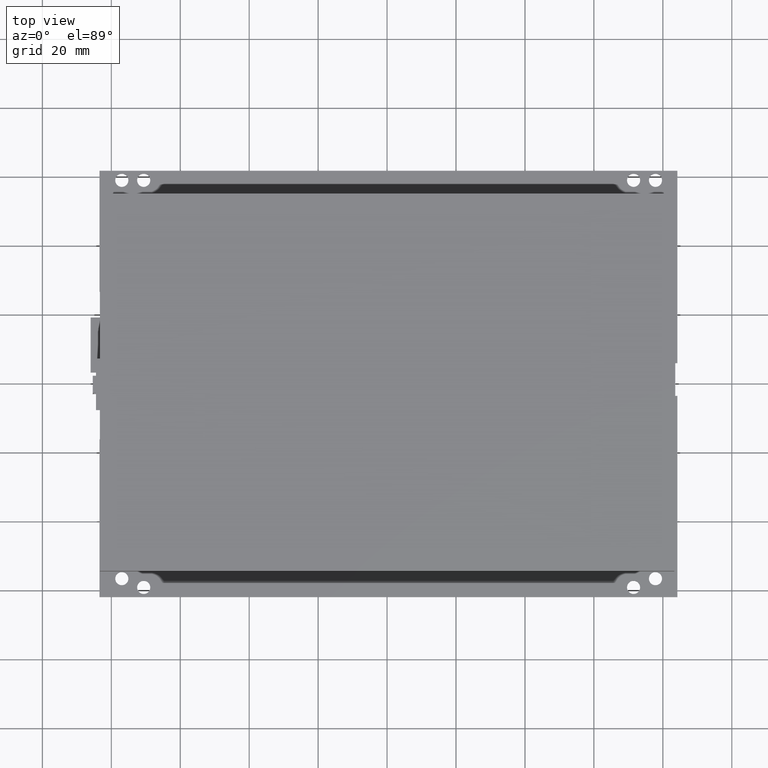
[diagram: clean part render]
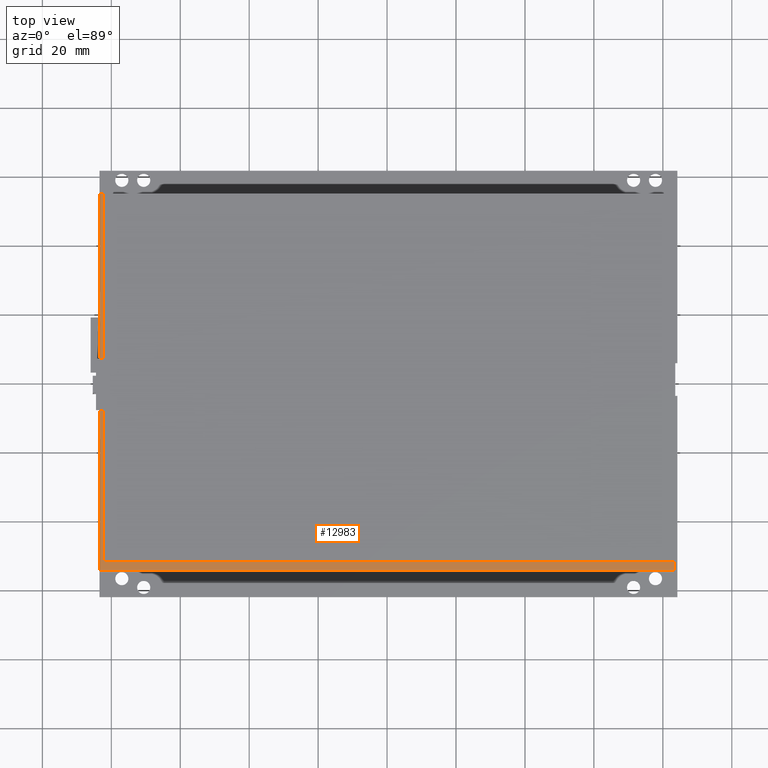
[diagram: same view with one face highlighted and labeled with its STEP entity id]
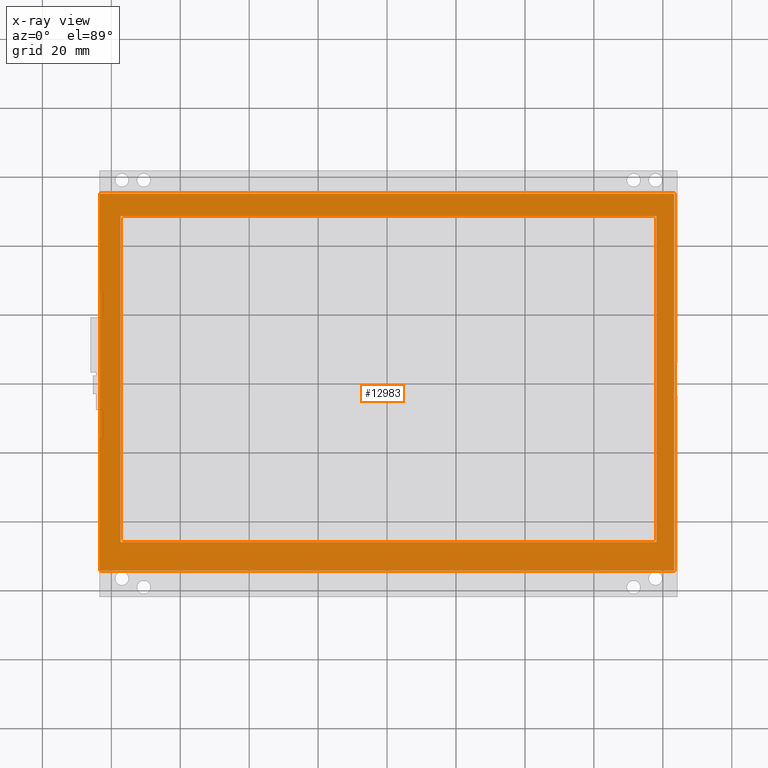
[diagram: x-ray of the same camera — body ghosted, the highlighted face saturated]
A machine part, top view. The second image highlights one B-rep face of the part: STEP entity #12983.
The next image is the same camera in x-ray: the body ghosted, the highlighted face saturated — about 0% of this face is hidden behind the body in this view.
In plain terms, the highlighted planar face has unit normal (0, 0, 1).
Its self-contained STEP definition (entity closure, byte-faithful):
#752 = VECTOR ( 'NONE', #1471, 39.37007874015748100 ) ;
#753 = VECTOR ( 'NONE', #1495, 39.37007874015748100 ) ;
#755 = VECTOR ( 'NONE', #1479, 39.37007874015748100 ) ;
#757 = VECTOR ( 'NONE', #1485, 39.37007874015748100 ) ;
#758 = VECTOR ( 'NONE', #1488, 39.37007874015748100 ) ;
#759 = VECTOR ( 'NONE', #1492, 39.37007874015748100 ) ;
#760 = VECTOR ( 'NONE', #1498, 39.37007874015748100 ) ;
#761 = VECTOR ( 'NONE', #1501, 39.37007874015748100 ) ;
#853 = AXIS2_PLACEMENT_3D ( 'NONE', #1931, #1943, #1944 ) ;
#1464 = LINE ( 'NONE', #1493, #753 ) ;
#1468 = LINE ( 'NONE', #1470, #752 ) ;
#1469 = LINE ( 'NONE', #1496, #760 ) ;
#1470 = CARTESIAN_POINT ( 'NONE',  ( -3.279527559055118100, 2.153543307086614300, 0.3937007874015748300 ) ) ;
#1471 = DIRECTION ( 'NONE',  ( 0.0000000000000000000, -1.000000000000000000, 0.0000000000000000000 ) ) ;
#1477 = LINE ( 'NONE', #1478, #755 ) ;
#1478 = CARTESIAN_POINT ( 'NONE',  ( -3.279527559055118100, -2.153543307086614300, 0.3937007874015748300 ) ) ;
#1479 = DIRECTION ( 'NONE',  ( 1.000000000000000000, -8.330004686563300100E-017, 0.0000000000000000000 ) ) ;
#1483 = LINE ( 'NONE', #1484, #757 ) ;
#1484 = CARTESIAN_POINT ( 'NONE',  ( 3.279527559055118100, 2.153543307086614300, 0.3937007874015748300 ) ) ;
#1485 = DIRECTION ( 'NONE',  ( -0.0000000000000000000, 1.000000000000000000, -0.0000000000000000000 ) ) ;
#1486 = LINE ( 'NONE', #1487, #758 ) ;
#1487 = CARTESIAN_POINT ( 'NONE',  ( -3.279527559055118100, 2.153543307086614300, 0.3937007874015748300 ) ) ;
#1488 = DIRECTION ( 'NONE',  ( -1.000000000000000000, -0.0000000000000000000, -0.0000000000000000000 ) ) ;
#1489 = LINE ( 'NONE', #1491, #759 ) ;
#1490 = LINE ( 'NONE', #1499, #761 ) ;
#1491 = CARTESIAN_POINT ( 'NONE',  ( -3.045275590551181500, 1.895669291338582900, 0.3937007874015748300 ) ) ;
#1492 = DIRECTION ( 'NONE',  ( 0.0000000000000000000, -1.000000000000000000, 0.0000000000000000000 ) ) ;
#1493 = CARTESIAN_POINT ( 'NONE',  ( -3.045275590551181500, 1.895669291338582900, 0.3937007874015748300 ) ) ;
#1495 = DIRECTION ( 'NONE',  ( -1.000000000000000000, -0.0000000000000000000, -0.0000000000000000000 ) ) ;
#1496 = CARTESIAN_POINT ( 'NONE',  ( 3.076771653543307000, 1.895669291338582900, 0.3937007874015748300 ) ) ;
#1498 = DIRECTION ( 'NONE',  ( 1.468548974371900200E-016, 1.000000000000000000, -0.0000000000000000000 ) ) ;
#1499 = CARTESIAN_POINT ( 'NONE',  ( -3.045275590551181500, -1.824803149606299100, 0.3937007874015748300 ) ) ;
#1501 = DIRECTION ( 'NONE',  ( 1.000000000000000000, 0.0000000000000000000, 0.0000000000000000000 ) ) ;
#1931 = CARTESIAN_POINT ( 'NONE',  ( -3.279527559055118100, 2.153543307086614300, 0.3937007874015748300 ) ) ;
#1936 = FACE_OUTER_BOUND ( 'NONE', #12779, .T. ) ;
#1940 = FACE_BOUND ( 'NONE', #12802, .T. ) ;
#1941 = PLANE ( 'NONE',  #853 ) ;
#1943 = DIRECTION ( 'NONE',  ( -0.0000000000000000000, 0.0000000000000000000, 1.000000000000000000 ) ) ;
#1944 = DIRECTION ( 'NONE',  ( 1.000000000000000000, 0.0000000000000000000, 0.0000000000000000000 ) ) ;
#8438 = CARTESIAN_POINT ( 'NONE',  ( -3.045275590551181500, 1.895669291338582900, 0.3937007874015748300 ) ) ;
#8441 = CARTESIAN_POINT ( 'NONE',  ( 3.279527559055118100, 2.153543307086614300, 0.3937007874015748300 ) ) ;
#8445 = CARTESIAN_POINT ( 'NONE',  ( -3.279527559055118100, -2.153543307086614300, 0.3937007874015748300 ) ) ;
#8480 = CARTESIAN_POINT ( 'NONE',  ( 3.076771653543307000, 1.895669291338582900, 0.3937007874015748300 ) ) ;
#8482 = CARTESIAN_POINT ( 'NONE',  ( 3.279527559055118100, -2.153543307086614800, 0.3937007874015748300 ) ) ;
#8485 = CARTESIAN_POINT ( 'NONE',  ( -3.045275590551181500, -1.824803149606299100, 0.3937007874015748300 ) ) ;
#8488 = CARTESIAN_POINT ( 'NONE',  ( -3.279527559055118100, 2.153543307086614300, 0.3937007874015748300 ) ) ;
#8543 = CARTESIAN_POINT ( 'NONE',  ( 3.076771653543306500, -1.824803149606299100, 0.3937007874015748300 ) ) ;
#12779 = EDGE_LOOP ( 'NONE', ( #13827, #13828, #13829, #13830 ) ) ;
#12802 = EDGE_LOOP ( 'NONE', ( #13823, #13824, #13825, #13826 ) ) ;
#12885 = EDGE_CURVE ( 'NONE', #16074, #16031, #1468, .T. ) ;
#12888 = EDGE_CURVE ( 'NONE', #16031, #16068, #1477, .T. ) ;
#12890 = EDGE_CURVE ( 'NONE', #16068, #16027, #1483, .T. ) ;
#12891 = EDGE_CURVE ( 'NONE', #16027, #16074, #1486, .T. ) ;
#12892 = EDGE_CURVE ( 'NONE', #16024, #16071, #1489, .T. ) ;
#12893 = EDGE_CURVE ( 'NONE', #16066, #16024, #1464, .T. ) ;
#12894 = EDGE_CURVE ( 'NONE', #16129, #16066, #1469, .T. ) ;
#12895 = EDGE_CURVE ( 'NONE', #16071, #16129, #1490, .T. ) ;
#12983 = ADVANCED_FACE ( 'NONE', ( #1940, #1936 ), #1941, .T. ) ;
#13823 = ORIENTED_EDGE ( 'NONE', *, *, #12892, .F. ) ;
#13824 = ORIENTED_EDGE ( 'NONE', *, *, #12893, .F. ) ;
#13825 = ORIENTED_EDGE ( 'NONE', *, *, #12894, .F. ) ;
#13826 = ORIENTED_EDGE ( 'NONE', *, *, #12895, .F. ) ;
#13827 = ORIENTED_EDGE ( 'NONE', *, *, #12885, .T. ) ;
#13828 = ORIENTED_EDGE ( 'NONE', *, *, #12888, .T. ) ;
#13829 = ORIENTED_EDGE ( 'NONE', *, *, #12890, .T. ) ;
#13830 = ORIENTED_EDGE ( 'NONE', *, *, #12891, .T. ) ;
#16024 = VERTEX_POINT ( 'NONE', #8438 ) ;
#16027 = VERTEX_POINT ( 'NONE', #8441 ) ;
#16031 = VERTEX_POINT ( 'NONE', #8445 ) ;
#16066 = VERTEX_POINT ( 'NONE', #8480 ) ;
#16068 = VERTEX_POINT ( 'NONE', #8482 ) ;
#16071 = VERTEX_POINT ( 'NONE', #8485 ) ;
#16074 = VERTEX_POINT ( 'NONE', #8488 ) ;
#16129 = VERTEX_POINT ( 'NONE', #8543 ) ;